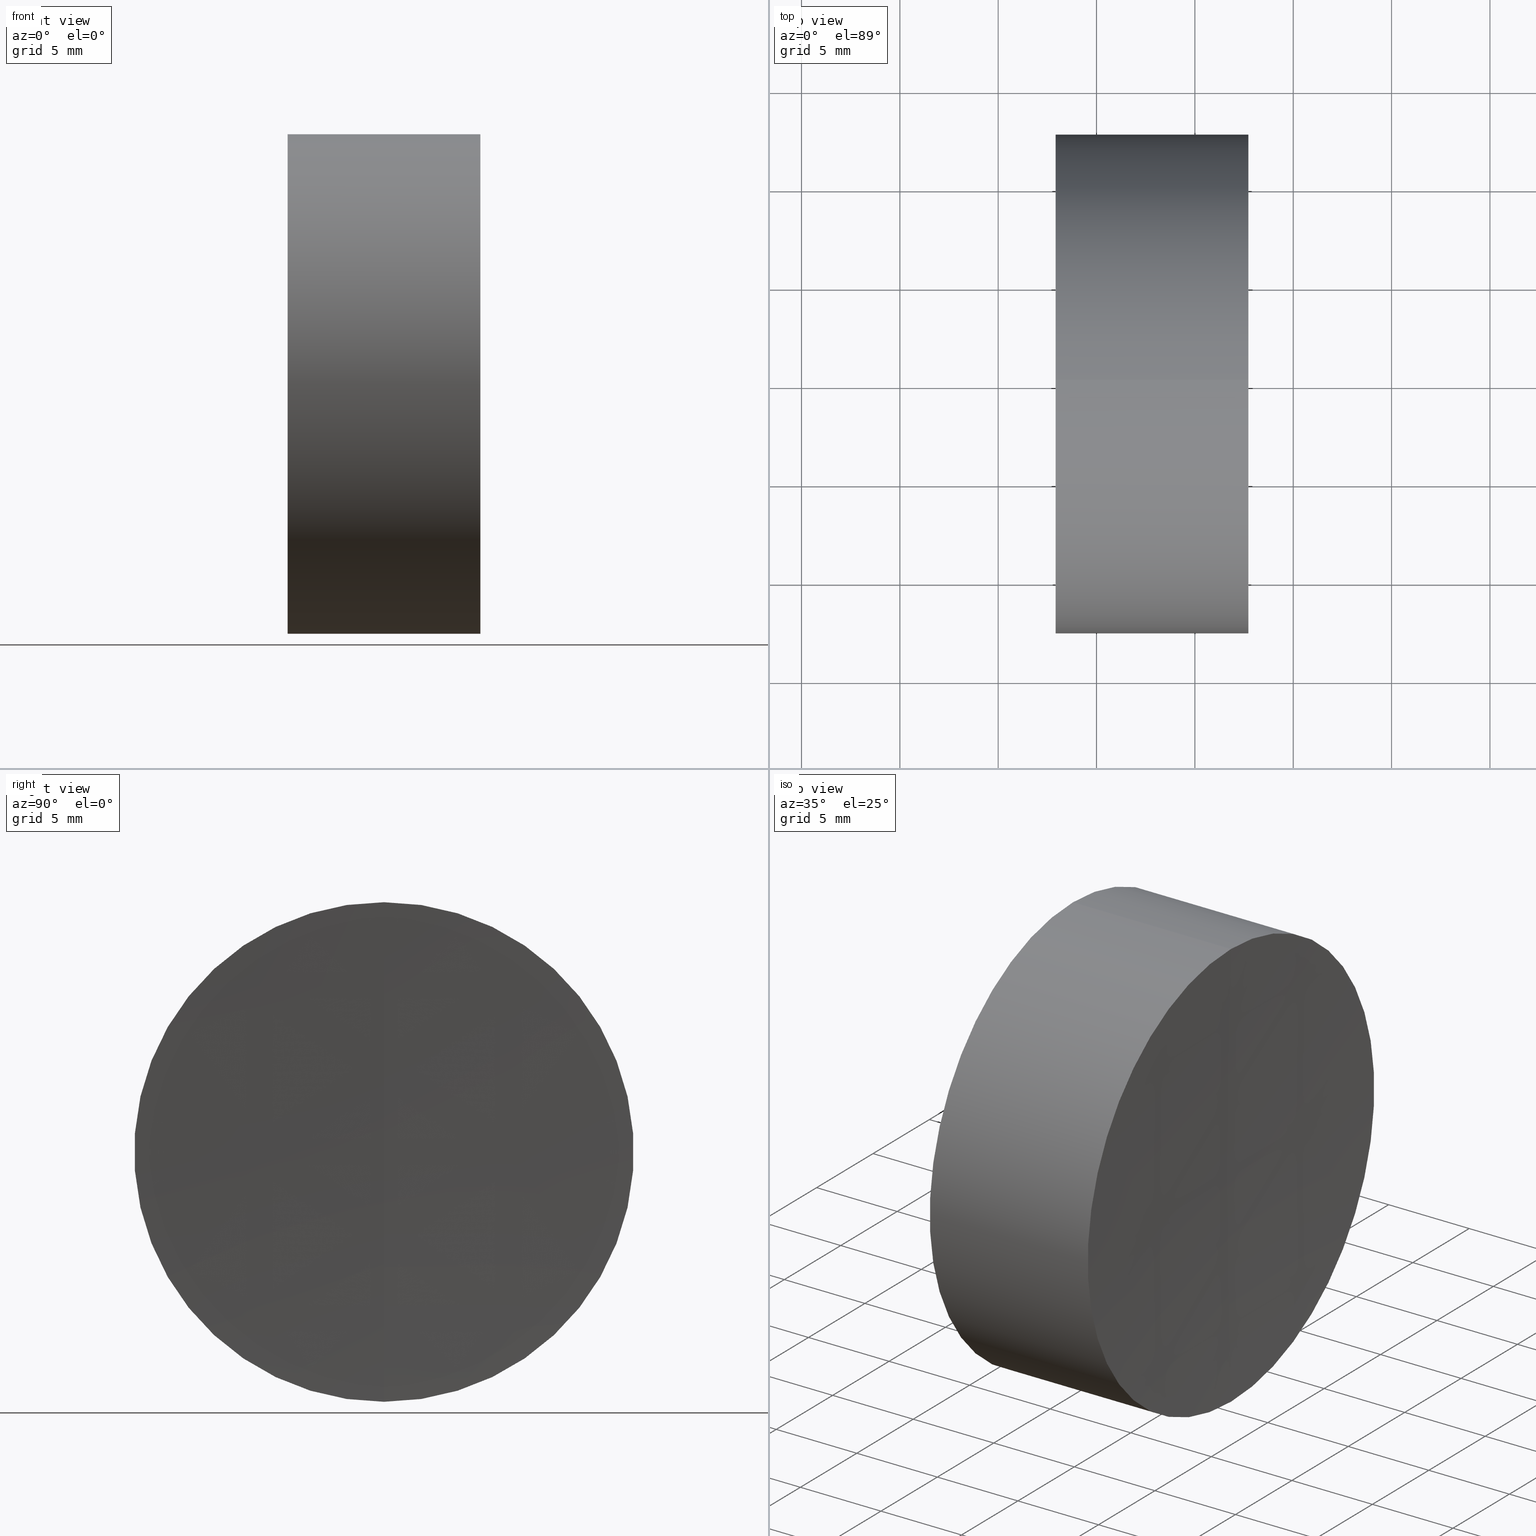
[diagram: canonical four-view strip — front | top / right | iso, engineering-drawing reading convention]
A machine part, canonical four-view strip (front | top / right | iso — engineering-drawing reading convention). The complete STEP part file that produces these views, byte-faithful:
ISO-10303-21;
HEADER;
FILE_DESCRIPTION (( 'STEP AP214' ),
    '1' );
FILE_NAME ('145209.STEP',
    '2019-06-13T09:20:19',
    ( 'user' ),
    ( '΢���й�' ),
    'SwSTEP 2.0',
    'SolidWorks 2016',
    '' );
FILE_SCHEMA (( 'AUTOMOTIVE_DESIGN' ));
ENDSEC;

DATA;
#1 = DIRECTION ( 'NONE',  ( 0.0000000000000000000, 0.0000000000000000000, 1.000000000000000000 ) ) ;
#2 = DIRECTION ( 'NONE',  ( 0.0000000000000000000, -1.000000000000000000, -1.224646799147353200E-016 ) ) ;
#3 = VECTOR ( 'NONE', #318, 1000.000000000000000 ) ;
#4 = SURFACE_STYLE_FILL_AREA ( #69 ) ;
#5 = PRESENTATION_LAYER_ASSIGNMENT (  '', '', ( #45 ) ) ;
#6 = AXIS2_PLACEMENT_3D ( 'NONE', #107, #80, #58 ) ;
#7 = CARTESIAN_POINT ( 'NONE',  ( 156.4787913146524800, 0.0000000000000000000, -6.431185812211329500E-014 ) ) ;
#8 = ORIENTED_EDGE ( 'NONE', *, *, #75, .T. ) ;
#9 = AXIS2_PLACEMENT_3D ( 'NONE', #212, #229, #137 ) ;
#10 = FACE_OUTER_BOUND ( 'NONE', #161, .T. ) ;
#11 = PRESENTATION_STYLE_ASSIGNMENT (( #90 ) ) ;
#12 = VERTEX_POINT ( 'NONE', #7 ) ;
#13 = AXIS2_PLACEMENT_3D ( 'NONE', #54, #158, #347 ) ;
#14 = AXIS2_PLACEMENT_3D ( 'NONE', #215, #312, #221 ) ;
#15 = AXIS2_PLACEMENT_3D ( 'NONE', #182, #237, #263 ) ;
#16 = CIRCLE ( 'NONE', #6, 27.85999999999998900 ) ;
#17 = ORIENTED_EDGE ( 'NONE', *, *, #37, .T. ) ;
#18 =( NAMED_UNIT ( * ) SI_UNIT ( $, .STERADIAN. ) SOLID_ANGLE_UNIT ( ) );
#19 = CIRCLE ( 'NONE', #180, 12.69999999999994100 ) ;
#20 = CARTESIAN_POINT ( 'NONE',  ( 152.9182642356440200, 0.0000000000000000000, -5.253961766177316900E-014 ) ) ;
#21 = EDGE_CURVE ( 'NONE', #44, #52, #291, .T. ) ;
#22 =( GEOMETRIC_REPRESENTATION_CONTEXT ( 3 ) GLOBAL_UNCERTAINTY_ASSIGNED_CONTEXT ( ( #211 ) ) GLOBAL_UNIT_ASSIGNED_CONTEXT ( ( #143, #268, #63 ) ) REPRESENTATION_CONTEXT ( 'NONE', 'WORKASPACE' ) );
#23 =( NAMED_UNIT ( * ) PLANE_ANGLE_UNIT ( ) SI_UNIT ( $, .RADIAN. ) );
#24 = VERTEX_POINT ( 'NONE', #34 ) ;
#25 = VERTEX_POINT ( 'NONE', #46 ) ;
#26 = CARTESIAN_POINT ( 'NONE',  ( 152.9182642356440200, 1.555301434917130500E-015, -12.69999999999993500 ) ) ;
#27 = CARTESIAN_POINT ( 'NONE',  ( -185.2744740506581700, 0.0000000000000000000, 12.70000000000001400 ) ) ;
#28 = MANIFOLD_SOLID_BREP ( '��ת1', #179 ) ;
#29 = MECHANICAL_DESIGN_GEOMETRIC_PRESENTATION_REPRESENTATION (  '', ( #45 ), #227 ) ;
#30 = DIRECTION ( 'NONE',  ( -1.000000000000000000, -0.0000000000000000000, -0.0000000000000000000 ) ) ;
#31 = DIRECTION ( 'NONE',  ( 0.0000000000000000000, 0.0000000000000000000, 1.000000000000000000 ) ) ;
#32 = DIRECTION ( 'NONE',  ( -1.000000000000000000, -0.0000000000000000000, -0.0000000000000000000 ) ) ;
#33 = AXIS2_PLACEMENT_3D ( 'NONE', #85, #81, #319 ) ;
#34 = CARTESIAN_POINT ( 'NONE',  ( 161.5418237581144500, 0.0000000000000000000, 12.69999999999993900 ) ) ;
#35 = DIRECTION ( 'NONE',  ( 0.0000000000000000000, -1.224646799147353200E-016, 1.000000000000000000 ) ) ;
#36 = VERTEX_POINT ( 'NONE', #206 ) ;
#37 = EDGE_CURVE ( 'NONE', #36, #240, #56, .T. ) ;
#38 = AXIS2_PLACEMENT_3D ( 'NONE', #346, #172, #314 ) ;
#39 = ORIENTED_EDGE ( 'NONE', *, *, #300, .F. ) ;
#40 = CARTESIAN_POINT ( 'NONE',  ( 158.4787913146524800, 0.0000000000000000000, -5.280559674274474200E-014 ) ) ;
#41 = SPHERICAL_SURFACE ( 'NONE', #239, 332.3000000000000100 ) ;
#42 = EDGE_CURVE ( 'NONE', #48, #332, #16, .T. ) ;
#43 = DIRECTION ( 'NONE',  ( 1.000000000000000000, 0.0000000000000000000, 0.0000000000000000000 ) ) ;
#44 = VERTEX_POINT ( 'NONE', #218 ) ;
#45 = STYLED_ITEM ( 'NONE', ( #131 ), #28 ) ;
#46 = CARTESIAN_POINT ( 'NONE',  ( 152.9182642356440200, 0.0000000000000000000, 12.69999999999993700 ) ) ;
#47 = DIRECTION ( 'NONE',  ( 0.0000000000000000000, 1.000000000000000000, 0.0000000000000000000 ) ) ;
#48 = VERTEX_POINT ( 'NONE', #298 ) ;
#49 = AXIS2_PLACEMENT_3D ( 'NONE', #98, #175, #127 ) ;
#50 = AXIS2_PLACEMENT_3D ( 'NONE', #128, #2, #83 ) ;
#51 = ADVANCED_FACE ( 'NONE', ( #322 ), #235, .T. ) ;
#52 = VERTEX_POINT ( 'NONE', #105 ) ;
#53 = CARTESIAN_POINT ( 'NONE',  ( 494.7787913146524900, 0.0000000000000000000, 0.0000000000000000000 ) ) ;
#54 = CARTESIAN_POINT ( 'NONE',  ( -185.2744740506581700, 0.0000000000000000000, 2.052032605930108700E-014 ) ) ;
#55 = VERTEX_POINT ( 'NONE', #249 ) ;
#56 = CIRCLE ( 'NONE', #50, 332.3000000000000100 ) ;
#57 =( LENGTH_UNIT ( ) NAMED_UNIT ( * ) SI_UNIT ( .MILLI., .METRE. ) );
#58 = DIRECTION ( 'NONE',  ( 0.0000000000000000000, -1.224646799147353200E-016, 1.000000000000000000 ) ) ;
#59 = COLOUR_RGB ( '',1.000000000000000000, 1.000000000000000000, 1.000000000000000000 ) ;
#60 = EDGE_CURVE ( 'NONE', #12, #55, #178, .T. ) ;
#61 = AXIS2_PLACEMENT_3D ( 'NONE', #99, #186, #1 ) ;
#62 = ADVANCED_FACE ( 'NONE', ( #299 ), #219, .F. ) ;
#63 =( NAMED_UNIT ( * ) SI_UNIT ( $, .STERADIAN. ) SOLID_ANGLE_UNIT ( ) );
#64 = CARTESIAN_POINT ( 'NONE',  ( 161.5418237581144500, 0.0000000000000000000, -5.440256947019921600E-014 ) ) ;
#65 = ORIENTED_EDGE ( 'NONE', *, *, #37, .F. ) ;
#66 = DIRECTION ( 'NONE',  ( -0.0000000000000000000, -1.000000000000000000, -0.0000000000000000000 ) ) ;
#67 = DIRECTION ( 'NONE',  ( -0.0000000000000000000, 1.000000000000000000, 1.224646799147353200E-016 ) ) ;
#68 = EDGE_LOOP ( 'NONE', ( #337, #139, #39 ) ) ;
#69 = FILL_AREA_STYLE ('',( #167 ) ) ;
#70 = AXIS2_PLACEMENT_3D ( 'NONE', #193, #30, #262 ) ;
#71 = DIRECTION ( 'NONE',  ( 0.0000000000000000000, 0.0000000000000000000, 1.000000000000000000 ) ) ;
#72 = APPLICATION_PROTOCOL_DEFINITION ( 'draft international standard', 'automotive_design', 1998, #313 ) ;
#73 = CIRCLE ( 'NONE', #106, 12.69999999999999200 ) ;
#74 = CIRCLE ( 'NONE', #33, 12.69999999999993000 ) ;
#75 = EDGE_CURVE ( 'NONE', #345, #44, #156, .T. ) ;
#76 = AXIS2_PLACEMENT_3D ( 'NONE', #333, #67, #35 ) ;
#77 = DIRECTION ( 'NONE',  ( 0.0000000000000000000, -1.224646799147353200E-016, 1.000000000000000000 ) ) ;
#78 = DIRECTION ( 'NONE',  ( -0.0000000000000000000, -1.000000000000000000, -0.0000000000000000000 ) ) ;
#79 = PRODUCT_CONTEXT ( 'NONE', #313, 'mechanical' ) ;
#80 = DIRECTION ( 'NONE',  ( 2.645610508294088600E-032, 1.000000000000000000, 1.224646799147353200E-016 ) ) ;
#81 = DIRECTION ( 'NONE',  ( -1.000000000000000000, -0.0000000000000000000, -0.0000000000000000000 ) ) ;
#82 = VECTOR ( 'NONE', #305, 1000.000000000000000 ) ;
#83 = DIRECTION ( 'NONE',  ( 0.0000000000000000000, 1.224646799147353200E-016, -1.000000000000000000 ) ) ;
#84 = CARTESIAN_POINT ( 'NONE',  ( 186.3387913146524700, 0.0000000000000000000, -6.053013924752375300E-014 ) ) ;
#85 = CARTESIAN_POINT ( 'NONE',  ( 161.5418237581144500, 0.0000000000000000000, 0.0000000000000000000 ) ) ;
#86 = EDGE_CURVE ( 'NONE', #345, #36, #19, .T. ) ;
#87 = CIRCLE ( 'NONE', #130, 12.69999999999999000 ) ;
#88 = ORIENTED_EDGE ( 'NONE', *, *, #228, .T. ) ;
#89 = EDGE_LOOP ( 'NONE', ( #230, #205, #323 ) ) ;
#90 = SURFACE_STYLE_USAGE ( .BOTH. , #217 ) ;
#91 = ORIENTED_EDGE ( 'NONE', *, *, #265, .T. ) ;
#92 = PRESENTATION_STYLE_ASSIGNMENT (( #276 ) ) ;
#93 = CARTESIAN_POINT ( 'NONE',  ( 186.3387913146524700, 0.0000000000000000000, -6.053013924752375300E-014 ) ) ;
#94 = CIRCLE ( 'NONE', #49, 24.43000000000000000 ) ;
#95 = DIRECTION ( 'NONE',  ( 0.0000000000000000000, -1.000000000000000000, 0.0000000000000000000 ) ) ;
#96 = EDGE_CURVE ( 'NONE', #52, #44, #74, .T. ) ;
#97 = ORIENTED_EDGE ( 'NONE', *, *, #335, .F. ) ;
#98 = CARTESIAN_POINT ( 'NONE',  ( 132.0487913146524800, 0.0000000000000000000, -6.053013926205872400E-014 ) ) ;
#99 = CARTESIAN_POINT ( 'NONE',  ( 494.7787913146524900, 0.0000000000000000000, 0.0000000000000000000 ) ) ;
#100 = AXIS2_PLACEMENT_3D ( 'NONE', #283, #170, #294 ) ;
#101 = UNCERTAINTY_MEASURE_WITH_UNIT (LENGTH_MEASURE( 1.000000000000000100E-005 ), #102, 'distance_accuracy_value', 'NONE');
#102 =( LENGTH_UNIT ( ) NAMED_UNIT ( * ) SI_UNIT ( .MILLI., .METRE. ) );
#103 = EDGE_CURVE ( 'NONE', #345, #240, #160, .T. ) ;
#104 = EDGE_LOOP ( 'NONE', ( #214, #271, #97 ) ) ;
#105 = CARTESIAN_POINT ( 'NONE',  ( 161.5418237581144500, 0.0000000000000000000, 12.69999999999993500 ) ) ;
#106 = AXIS2_PLACEMENT_3D ( 'NONE', #342, #194, #223 ) ;
#107 = CARTESIAN_POINT ( 'NONE',  ( 186.3387913146524700, 0.0000000000000000000, -6.053013924752375300E-014 ) ) ;
#108 = ORIENTED_EDGE ( 'NONE', *, *, #115, .F. ) ;
#109 = DIRECTION ( 'NONE',  ( 0.0000000000000000000, 0.0000000000000000000, 1.000000000000000000 ) ) ;
#110 = LINE ( 'NONE', #27, #3 ) ;
#111 = COLOUR_RGB ( '',1.000000000000000000, 1.000000000000000000, 1.000000000000000000 ) ;
#112 = DIRECTION ( 'NONE',  ( -1.000000000000000000, -0.0000000000000000000, 2.160304922313981000E-016 ) ) ;
#113 = STYLED_ITEM ( 'NONE', ( #92 ), #142 ) ;
#114 = DIRECTION ( 'NONE',  ( -1.000000000000000000, -0.0000000000000000000, -0.0000000000000000000 ) ) ;
#115 = EDGE_CURVE ( 'NONE', #36, #52, #340, .T. ) ;
#116 = DIRECTION ( 'NONE',  ( 0.0000000000000000000, 0.0000000000000000000, -1.000000000000000000 ) ) ;
#117 = DIRECTION ( 'NONE',  ( -1.000000000000000000, -0.0000000000000000000, 2.160304922313981000E-016 ) ) ;
#118 = DIRECTION ( 'NONE',  ( 0.0000000000000000000, 0.0000000000000000000, 1.000000000000000000 ) ) ;
#119 = FACE_OUTER_BOUND ( 'NONE', #260, .T. ) ;
#120 = PRESENTATION_LAYER_ASSIGNMENT (  '', '', ( #136 ) ) ;
#121 = PRODUCT_DEFINITION_CONTEXT ( 'detailed design', #190, 'design' ) ;
#122 = VECTOR ( 'NONE', #32, 1000.000000000000000 ) ;
#123 = SURFACE_STYLE_FILL_AREA ( #210 ) ;
#124 = EDGE_LOOP ( 'NONE', ( #196, #316, #164 ) ) ;
#125 = APPLICATION_PROTOCOL_DEFINITION ( 'draft international standard', 'automotive_design', 1998, #190 ) ;
#126 = ADVANCED_FACE ( 'NONE', ( #165 ), #286, .F. ) ;
#127 = DIRECTION ( 'NONE',  ( 0.0000000000000000000, 0.0000000000000000000, -1.000000000000000000 ) ) ;
#128 = CARTESIAN_POINT ( 'NONE',  ( 494.7787913146524900, 0.0000000000000000000, 0.0000000000000000000 ) ) ;
#129 = CARTESIAN_POINT ( 'NONE',  ( 162.7215673305927900, 0.0000000000000000000, 0.0000000000000000000 ) ) ;
#130 = AXIS2_PLACEMENT_3D ( 'NONE', #20, #117, #71 ) ;
#131 = PRESENTATION_STYLE_ASSIGNMENT (( #245 ) ) ;
#132 = ORIENTED_EDGE ( 'NONE', *, *, #335, .T. ) ;
#133 = CIRCLE ( 'NONE', #76, 27.86000000000000300 ) ;
#134 = CIRCLE ( 'NONE', #222, 12.69999999999999000 ) ;
#135 = ORIENTED_EDGE ( 'NONE', *, *, #225, .T. ) ;
#136 = STYLED_ITEM ( 'NONE', ( #11 ), #292 ) ;
#137 = DIRECTION ( 'NONE',  ( 0.0000000000000000000, 0.0000000000000000000, 1.000000000000000000 ) ) ;
#138 = CARTESIAN_POINT ( 'NONE',  ( 186.3387913146524700, 0.0000000000000000000, -6.053013924752375300E-014 ) ) ;
#139 = ORIENTED_EDGE ( 'NONE', *, *, #42, .T. ) ;
#140 = DIRECTION ( 'NONE',  ( 0.0000000000000000000, 0.0000000000000000000, 1.000000000000000000 ) ) ;
#141 = COLOUR_RGB ( '',1.000000000000000000, 1.000000000000000000, 1.000000000000000000 ) ;
#142 = ADVANCED_BREP_SHAPE_REPRESENTATION ( '145209', ( #28, #292, #256 ), #22 ) ;
#143 =( LENGTH_UNIT ( ) NAMED_UNIT ( * ) SI_UNIT ( .MILLI., .METRE. ) );
#144 = ORIENTED_EDGE ( 'NONE', *, *, #281, .T. ) ;
#145 = AXIS2_PLACEMENT_3D ( 'NONE', #257, #95, #197 ) ;
#146 = ADVANCED_FACE ( 'NONE', ( #119 ), #154, .T. ) ;
#147 = EDGE_CURVE ( 'NONE', #44, #166, #133, .T. ) ;
#148 = DIRECTION ( 'NONE',  ( -0.0000000000000000000, 1.000000000000000000, 0.0000000000000000000 ) ) ;
#149 = SURFACE_SIDE_STYLE ('',( #123 ) ) ;
#150 = CLOSED_SHELL ( 'NONE', ( #62, #163, #330, #304, #269, #296 ) ) ;
#151 = AXIS2_PLACEMENT_3D ( 'NONE', #202, #148, #162 ) ;
#152 = SPHERICAL_SURFACE ( 'NONE', #38, 27.86000000000000300 ) ;
#153 = CIRCLE ( 'NONE', #145, 27.85999999999998900 ) ;
#154 = CYLINDRICAL_SURFACE ( 'NONE', #100, 12.69999999999999200 ) ;
#155 = ORIENTED_EDGE ( 'NONE', *, *, #208, .T. ) ;
#156 = LINE ( 'NONE', #26, #122 ) ;
#157 = DIRECTION ( 'NONE',  ( 0.0000000000000000000, 0.0000000000000000000, 1.000000000000000000 ) ) ;
#158 = DIRECTION ( 'NONE',  ( -1.000000000000000000, -0.0000000000000000000, 2.160304922313981000E-016 ) ) ;
#159 = AXIS2_PLACEMENT_3D ( 'NONE', #84, #308, #109 ) ;
#160 = CIRCLE ( 'NONE', #61, 332.3000000000000100 ) ;
#161 = EDGE_LOOP ( 'NONE', ( #65, #181, #280 ) ) ;
#162 = DIRECTION ( 'NONE',  ( 0.0000000000000000000, 0.0000000000000000000, 1.000000000000000000 ) ) ;
#163 = ADVANCED_FACE ( 'NONE', ( #301 ), #183, .T. ) ;
#164 = ORIENTED_EDGE ( 'NONE', *, *, #300, .T. ) ;
#165 = FACE_OUTER_BOUND ( 'NONE', #124, .T. ) ;
#166 = VERTEX_POINT ( 'NONE', #334 ) ;
#167 = FILL_AREA_STYLE_COLOUR ( '', #59 ) ;
#168 = AXIS2_PLACEMENT_3D ( 'NONE', #321, #114, #278 ) ;
#169 = SURFACE_STYLE_FILL_AREA ( #220 ) ;
#170 = DIRECTION ( 'NONE',  ( -1.000000000000000000, -0.0000000000000000000, 2.160304922313981000E-016 ) ) ;
#171 = CIRCLE ( 'NONE', #216, 27.86000000000000300 ) ;
#172 = DIRECTION ( 'NONE',  ( 0.0000000000000000000, 1.000000000000000000, 0.0000000000000000000 ) ) ;
#173 = ORIENTED_EDGE ( 'NONE', *, *, #86, .T. ) ;
#174 = ORIENTED_EDGE ( 'NONE', *, *, #225, .F. ) ;
#175 = DIRECTION ( 'NONE',  ( 0.0000000000000000000, -1.000000000000000000, 0.0000000000000000000 ) ) ;
#176 = CARTESIAN_POINT ( 'NONE',  ( -185.2744740506581700, 1.555301434917137800E-015, -12.69999999999997100 ) ) ;
#177 =( NAMED_UNIT ( * ) SI_UNIT ( $, .STERADIAN. ) SOLID_ANGLE_UNIT ( ) );
#178 = CIRCLE ( 'NONE', #201, 24.43000000000000000 ) ;
#179 = CLOSED_SHELL ( 'NONE', ( #255, #51, #284, #273, #146, #126 ) ) ;
#180 = AXIS2_PLACEMENT_3D ( 'NONE', #129, #187, #31 ) ;
#181 = ORIENTED_EDGE ( 'NONE', *, *, #86, .F. ) ;
#182 = CARTESIAN_POINT ( 'NONE',  ( 152.9182642356440200, 0.0000000000000000000, 0.0000000000000000000 ) ) ;
#183 = CYLINDRICAL_SURFACE ( 'NONE', #15, 12.69999999999993500 ) ;
#184 = AXIS2_PLACEMENT_3D ( 'NONE', #209, #242, #231 ) ;
#185 = ORIENTED_EDGE ( 'NONE', *, *, #115, .T. ) ;
#186 = DIRECTION ( 'NONE',  ( 0.0000000000000000000, 1.000000000000000000, -0.0000000000000000000 ) ) ;
#187 = DIRECTION ( 'NONE',  ( -1.000000000000000000, -0.0000000000000000000, -0.0000000000000000000 ) ) ;
#188 = CARTESIAN_POINT ( 'NONE',  ( 152.9182642356440200, 0.0000000000000000000, -5.253961766177316900E-014 ) ) ;
#189 = AXIS2_PLACEMENT_3D ( 'NONE', #64, #303, #157 ) ;
#190 = APPLICATION_CONTEXT ( 'automotive_design' ) ;
#191 = DIRECTION ( 'NONE',  ( 2.645610508294088600E-032, 1.000000000000000000, 1.224646799147353200E-016 ) ) ;
#192 = ORIENTED_EDGE ( 'NONE', *, *, #21, .F. ) ;
#193 = CARTESIAN_POINT ( 'NONE',  ( 162.7215673305927900, 0.0000000000000000000, 0.0000000000000000000 ) ) ;
#194 = DIRECTION ( 'NONE',  ( -1.000000000000000000, -0.0000000000000000000, 2.160304922313981000E-016 ) ) ;
#195 = CIRCLE ( 'NONE', #189, 12.69999999999999200 ) ;
#196 = ORIENTED_EDGE ( 'NONE', *, *, #42, .F. ) ;
#197 = DIRECTION ( 'NONE',  ( 0.0000000000000000000, 0.0000000000000000000, -1.000000000000000000 ) ) ;
#198 = AXIS2_PLACEMENT_3D ( 'NONE', #93, #47, #311 ) ;
#199 = FACE_OUTER_BOUND ( 'NONE', #89, .T. ) ;
#200 = DIRECTION ( 'NONE',  ( 0.0000000000000000000, -1.000000000000000000, 0.0000000000000000000 ) ) ;
#201 = AXIS2_PLACEMENT_3D ( 'NONE', #274, #191, #77 ) ;
#202 = CARTESIAN_POINT ( 'NONE',  ( 132.0487913146524800, 0.0000000000000000000, -6.053013926205872400E-014 ) ) ;
#203 = EDGE_CURVE ( 'NONE', #55, #25, #134, .T. ) ;
#204 = CARTESIAN_POINT ( 'NONE',  ( 162.7215673305927900, 1.555301434917131300E-015, -12.69999999999994100 ) ) ;
#205 = ORIENTED_EDGE ( 'NONE', *, *, #60, .T. ) ;
#206 = CARTESIAN_POINT ( 'NONE',  ( 162.7215673305927900, 0.0000000000000000000, 12.69999999999994100 ) ) ;
#207 = AXIS2_PLACEMENT_3D ( 'NONE', #53, #78, #213 ) ;
#208 = EDGE_CURVE ( 'NONE', #12, #25, #94, .T. ) ;
#209 = CARTESIAN_POINT ( 'NONE',  ( 132.0487913146524800, 0.0000000000000000000, -6.053013926205872400E-014 ) ) ;
#210 = FILL_AREA_STYLE ('',( #238 ) ) ;
#211 = UNCERTAINTY_MEASURE_WITH_UNIT (LENGTH_MEASURE( 1.000000000000000100E-005 ), #143, 'distance_accuracy_value', 'NONE');
#212 = CARTESIAN_POINT ( 'NONE',  ( 186.3387913146524700, 0.0000000000000000000, -6.053013924752375300E-014 ) ) ;
#213 = DIRECTION ( 'NONE',  ( 0.0000000000000000000, 0.0000000000000000000, -1.000000000000000000 ) ) ;
#214 = ORIENTED_EDGE ( 'NONE', *, *, #96, .T. ) ;
#215 = CARTESIAN_POINT ( 'NONE',  ( 161.5418237581144500, 0.0000000000000000000, 0.0000000000000000000 ) ) ;
#216 = AXIS2_PLACEMENT_3D ( 'NONE', #138, #200, #116 ) ;
#217 = SURFACE_SIDE_STYLE ('',( #4 ) ) ;
#218 = CARTESIAN_POINT ( 'NONE',  ( 161.5418237581144500, 1.555301434917130500E-015, -12.69999999999999600 ) ) ;
#219 = SPHERICAL_SURFACE ( 'NONE', #207, 332.3000000000000100 ) ;
#220 = FILL_AREA_STYLE ('',( #279 ) ) ;
#221 = DIRECTION ( 'NONE',  ( 0.0000000000000000000, 0.0000000000000000000, 1.000000000000000000 ) ) ;
#222 = AXIS2_PLACEMENT_3D ( 'NONE', #188, #112, #118 ) ;
#223 = DIRECTION ( 'NONE',  ( 0.0000000000000000000, 0.0000000000000000000, 1.000000000000000000 ) ) ;
#224 = ORIENTED_EDGE ( 'NONE', *, *, #75, .F. ) ;
#225 = EDGE_CURVE ( 'NONE', #48, #55, #261, .T. ) ;
#226 = CARTESIAN_POINT ( 'NONE',  ( 162.4787913146524800, 0.0000000000000000000, -2.034750656783327300E-014 ) ) ;
#227 =( GEOMETRIC_REPRESENTATION_CONTEXT ( 3 ) GLOBAL_UNCERTAINTY_ASSIGNED_CONTEXT ( ( #267 ) ) GLOBAL_UNIT_ASSIGNED_CONTEXT ( ( #57, #23, #248 ) ) REPRESENTATION_CONTEXT ( 'NONE', 'WORKASPACE' ) );
#228 = EDGE_CURVE ( 'NONE', #24, #25, #110, .T. ) ;
#229 = DIRECTION ( 'NONE',  ( -0.0000000000000000000, 1.000000000000000000, 0.0000000000000000000 ) ) ;
#230 = ORIENTED_EDGE ( 'NONE', *, *, #208, .F. ) ;
#231 = DIRECTION ( 'NONE',  ( 0.0000000000000000000, 0.0000000000000000000, 1.000000000000000000 ) ) ;
#232 = FACE_OUTER_BOUND ( 'NONE', #104, .T. ) ;
#233 =( GEOMETRIC_REPRESENTATION_CONTEXT ( 3 ) GLOBAL_UNCERTAINTY_ASSIGNED_CONTEXT ( ( #101 ) ) GLOBAL_UNIT_ASSIGNED_CONTEXT ( ( #102, #297, #177 ) ) REPRESENTATION_CONTEXT ( 'NONE', 'WORKASPACE' ) );
#234 = EDGE_LOOP ( 'NONE', ( #317, #17, #236 ) ) ;
#235 = CYLINDRICAL_SURFACE ( 'NONE', #13, 12.69999999999999200 ) ;
#236 = ORIENTED_EDGE ( 'NONE', *, *, #103, .F. ) ;
#237 = DIRECTION ( 'NONE',  ( -1.000000000000000000, -0.0000000000000000000, -0.0000000000000000000 ) ) ;
#238 = FILL_AREA_STYLE_COLOUR ( '', #141 ) ;
#239 = AXIS2_PLACEMENT_3D ( 'NONE', #339, #66, #344 ) ;
#240 = VERTEX_POINT ( 'NONE', #226 ) ;
#241 = ORIENTED_EDGE ( 'NONE', *, *, #96, .F. ) ;
#242 = DIRECTION ( 'NONE',  ( -0.0000000000000000000, 1.000000000000000000, 0.0000000000000000000 ) ) ;
#243 = UNCERTAINTY_MEASURE_WITH_UNIT (LENGTH_MEASURE( 1.000000000000000100E-005 ), #244, 'distance_accuracy_value', 'NONE');
#244 =( LENGTH_UNIT ( ) NAMED_UNIT ( * ) SI_UNIT ( .MILLI., .METRE. ) );
#245 = SURFACE_STYLE_USAGE ( .BOTH. , #149 ) ;
#246 = SHAPE_DEFINITION_REPRESENTATION ( #307, #142 ) ;
#247 = EDGE_LOOP ( 'NONE', ( #285, #306, #132 ) ) ;
#248 =( NAMED_UNIT ( * ) SI_UNIT ( $, .STERADIAN. ) SOLID_ANGLE_UNIT ( ) );
#249 = CARTESIAN_POINT ( 'NONE',  ( 152.9182642356440200, 1.555301434917137200E-015, -12.70000000000005400 ) ) ;
#250 =( GEOMETRIC_REPRESENTATION_CONTEXT ( 3 ) GLOBAL_UNCERTAINTY_ASSIGNED_CONTEXT ( ( #243 ) ) GLOBAL_UNIT_ASSIGNED_CONTEXT ( ( #244, #289, #18 ) ) REPRESENTATION_CONTEXT ( 'NONE', 'WORKASPACE' ) );
#251 = EDGE_CURVE ( 'NONE', #24, #48, #73, .T. ) ;
#252 = EDGE_LOOP ( 'NONE', ( #254, #135, #341, #302 ) ) ;
#253 = EDGE_LOOP ( 'NONE', ( #91, #8, #241, #108 ) ) ;
#254 = ORIENTED_EDGE ( 'NONE', *, *, #251, .T. ) ;
#255 = ADVANCED_FACE ( 'NONE', ( #270 ), #315, .F. ) ;
#256 = AXIS2_PLACEMENT_3D ( 'NONE', #288, #140, #43 ) ;
#257 = CARTESIAN_POINT ( 'NONE',  ( 186.3387913146524700, 0.0000000000000000000, -6.053013924752375300E-014 ) ) ;
#258 = SPHERICAL_SURFACE ( 'NONE', #198, 27.86000000000000300 ) ;
#259 = CYLINDRICAL_SURFACE ( 'NONE', #168, 12.69999999999993500 ) ;
#260 = EDGE_LOOP ( 'NONE', ( #174, #144, #88, #320 ) ) ;
#261 = LINE ( 'NONE', #176, #82 ) ;
#262 = DIRECTION ( 'NONE',  ( 0.0000000000000000000, 0.0000000000000000000, 1.000000000000000000 ) ) ;
#263 = DIRECTION ( 'NONE',  ( 0.0000000000000000000, 0.0000000000000000000, 1.000000000000000000 ) ) ;
#264 = PRESENTATION_LAYER_ASSIGNMENT (  '', '', ( #113 ) ) ;
#265 = EDGE_CURVE ( 'NONE', #36, #345, #331, .T. ) ;
#266 = DIRECTION ( 'NONE',  ( -1.000000000000000000, -0.0000000000000000000, -0.0000000000000000000 ) ) ;
#267 = UNCERTAINTY_MEASURE_WITH_UNIT (LENGTH_MEASURE( 1.000000000000000100E-005 ), #57, 'distance_accuracy_value', 'NONE');
#268 =( NAMED_UNIT ( * ) PLANE_ANGLE_UNIT ( ) SI_UNIT ( $, .RADIAN. ) );
#269 = ADVANCED_FACE ( 'NONE', ( #275 ), #259, .T. ) ;
#270 = FACE_OUTER_BOUND ( 'NONE', #68, .T. ) ;
#271 = ORIENTED_EDGE ( 'NONE', *, *, #147, .T. ) ;
#272 = MECHANICAL_DESIGN_GEOMETRIC_PRESENTATION_REPRESENTATION (  '', ( #113 ), #250 ) ;
#273 = ADVANCED_FACE ( 'NONE', ( #277 ), #309, .F. ) ;
#274 = CARTESIAN_POINT ( 'NONE',  ( 132.0487913146524800, 0.0000000000000000000, -6.053013926205872400E-014 ) ) ;
#275 = FACE_OUTER_BOUND ( 'NONE', #287, .T. ) ;
#276 = SURFACE_STYLE_USAGE ( .BOTH. , #327 ) ;
#277 = FACE_OUTER_BOUND ( 'NONE', #338, .T. ) ;
#278 = DIRECTION ( 'NONE',  ( 0.0000000000000000000, 0.0000000000000000000, 1.000000000000000000 ) ) ;
#279 = FILL_AREA_STYLE_COLOUR ( '', #111 ) ;
#280 = ORIENTED_EDGE ( 'NONE', *, *, #103, .T. ) ;
#281 = EDGE_CURVE ( 'NONE', #48, #24, #195, .T. ) ;
#282 = PRODUCT_DEFINITION_FORMATION_WITH_SPECIFIED_SOURCE ( '�κ�', '', #324, .NOT_KNOWN. ) ;
#283 = CARTESIAN_POINT ( 'NONE',  ( -185.2744740506581700, 0.0000000000000000000, 2.052032605930108700E-014 ) ) ;
#284 = ADVANCED_FACE ( 'NONE', ( #199 ), #329, .F. ) ;
#285 = ORIENTED_EDGE ( 'NONE', *, *, #147, .F. ) ;
#286 = SPHERICAL_SURFACE ( 'NONE', #159, 27.85999999999998900 ) ;
#287 = EDGE_LOOP ( 'NONE', ( #224, #173, #185, #192 ) ) ;
#288 = CARTESIAN_POINT ( 'NONE',  ( 0.0000000000000000000, 0.0000000000000000000, 0.0000000000000000000 ) ) ;
#289 =( NAMED_UNIT ( * ) PLANE_ANGLE_UNIT ( ) SI_UNIT ( $, .RADIAN. ) );
#290 = MECHANICAL_DESIGN_GEOMETRIC_PRESENTATION_REPRESENTATION (  '', ( #136 ), #233 ) ;
#291 = CIRCLE ( 'NONE', #14, 12.69999999999993000 ) ;
#292 = MANIFOLD_SOLID_BREP ( '��ת3', #150 ) ;
#293 = ORIENTED_EDGE ( 'NONE', *, *, #295, .T. ) ;
#294 = DIRECTION ( 'NONE',  ( 0.0000000000000000000, 0.0000000000000000000, 1.000000000000000000 ) ) ;
#295 = EDGE_CURVE ( 'NONE', #25, #55, #87, .T. ) ;
#296 = ADVANCED_FACE ( 'NONE', ( #10 ), #41, .F. ) ;
#297 =( NAMED_UNIT ( * ) PLANE_ANGLE_UNIT ( ) SI_UNIT ( $, .RADIAN. ) );
#298 = CARTESIAN_POINT ( 'NONE',  ( 161.5418237581144500, 1.555301434917138000E-015, -12.70000000000004700 ) ) ;
#299 = FACE_OUTER_BOUND ( 'NONE', #234, .T. ) ;
#300 = EDGE_CURVE ( 'NONE', #24, #332, #153, .T. ) ;
#301 = FACE_OUTER_BOUND ( 'NONE', #253, .T. ) ;
#302 = ORIENTED_EDGE ( 'NONE', *, *, #228, .F. ) ;
#303 = DIRECTION ( 'NONE',  ( -1.000000000000000000, -0.0000000000000000000, 2.160304922313981000E-016 ) ) ;
#304 = ADVANCED_FACE ( 'NONE', ( #326 ), #258, .T. ) ;
#305 = DIRECTION ( 'NONE',  ( -1.000000000000000000, -0.0000000000000000000, 2.160304922313981000E-016 ) ) ;
#306 = ORIENTED_EDGE ( 'NONE', *, *, #21, .T. ) ;
#307 = PRODUCT_DEFINITION_SHAPE ( 'NONE', 'NONE',  #325 ) ;
#308 = DIRECTION ( 'NONE',  ( -0.0000000000000000000, 1.000000000000000000, 0.0000000000000000000 ) ) ;
#309 = SPHERICAL_SURFACE ( 'NONE', #184, 24.43000000000000000 ) ;
#310 = PRODUCT_RELATED_PRODUCT_CATEGORY ( 'part', '', ( #324 ) ) ;
#311 = DIRECTION ( 'NONE',  ( 0.0000000000000000000, 0.0000000000000000000, 1.000000000000000000 ) ) ;
#312 = DIRECTION ( 'NONE',  ( -1.000000000000000000, -0.0000000000000000000, -0.0000000000000000000 ) ) ;
#313 = APPLICATION_CONTEXT ( 'automotive_design' ) ;
#314 = DIRECTION ( 'NONE',  ( 0.0000000000000000000, 0.0000000000000000000, 1.000000000000000000 ) ) ;
#315 = SPHERICAL_SURFACE ( 'NONE', #9, 27.85999999999998900 ) ;
#316 = ORIENTED_EDGE ( 'NONE', *, *, #251, .F. ) ;
#317 = ORIENTED_EDGE ( 'NONE', *, *, #265, .F. ) ;
#318 = DIRECTION ( 'NONE',  ( -1.000000000000000000, -0.0000000000000000000, 2.160304922313981000E-016 ) ) ;
#319 = DIRECTION ( 'NONE',  ( 0.0000000000000000000, 0.0000000000000000000, 1.000000000000000000 ) ) ;
#320 = ORIENTED_EDGE ( 'NONE', *, *, #203, .F. ) ;
#321 = CARTESIAN_POINT ( 'NONE',  ( 152.9182642356440200, 0.0000000000000000000, 0.0000000000000000000 ) ) ;
#322 = FACE_OUTER_BOUND ( 'NONE', #252, .T. ) ;
#323 = ORIENTED_EDGE ( 'NONE', *, *, #203, .T. ) ;
#324 = PRODUCT ( '145209', '145209', '', ( #79 ) ) ;
#325 = PRODUCT_DEFINITION ( 'δ֪', '', #282, #121 ) ;
#326 = FACE_OUTER_BOUND ( 'NONE', #247, .T. ) ;
#327 = SURFACE_SIDE_STYLE ('',( #169 ) ) ;
#328 = ORIENTED_EDGE ( 'NONE', *, *, #60, .F. ) ;
#329 = SPHERICAL_SURFACE ( 'NONE', #151, 24.43000000000000000 ) ;
#330 = ADVANCED_FACE ( 'NONE', ( #232 ), #152, .T. ) ;
#331 = CIRCLE ( 'NONE', #70, 12.69999999999994100 ) ;
#332 = VERTEX_POINT ( 'NONE', #40 ) ;
#333 = CARTESIAN_POINT ( 'NONE',  ( 186.3387913146524700, 0.0000000000000000000, -6.053013924752375300E-014 ) ) ;
#334 = CARTESIAN_POINT ( 'NONE',  ( 158.4787913146524800, 0.0000000000000000000, -5.882420625631149400E-014 ) ) ;
#335 = EDGE_CURVE ( 'NONE', #52, #166, #171, .T. ) ;
#336 = VECTOR ( 'NONE', #266, 1000.000000000000000 ) ;
#337 = ORIENTED_EDGE ( 'NONE', *, *, #281, .F. ) ;
#338 = EDGE_LOOP ( 'NONE', ( #328, #155, #293 ) ) ;
#339 = CARTESIAN_POINT ( 'NONE',  ( 494.7787913146524900, 0.0000000000000000000, 0.0000000000000000000 ) ) ;
#340 = LINE ( 'NONE', #343, #336 ) ;
#341 = ORIENTED_EDGE ( 'NONE', *, *, #295, .F. ) ;
#342 = CARTESIAN_POINT ( 'NONE',  ( 161.5418237581144500, 0.0000000000000000000, -5.440256947019921600E-014 ) ) ;
#343 = CARTESIAN_POINT ( 'NONE',  ( 152.9182642356440200, 0.0000000000000000000, 12.69999999999993500 ) ) ;
#344 = DIRECTION ( 'NONE',  ( 0.0000000000000000000, 0.0000000000000000000, -1.000000000000000000 ) ) ;
#345 = VERTEX_POINT ( 'NONE', #204 ) ;
#346 = CARTESIAN_POINT ( 'NONE',  ( 186.3387913146524700, 0.0000000000000000000, -6.053013924752375300E-014 ) ) ;
#347 = DIRECTION ( 'NONE',  ( 0.0000000000000000000, 0.0000000000000000000, 1.000000000000000000 ) ) ;
ENDSEC;
END-ISO-10303-21;
